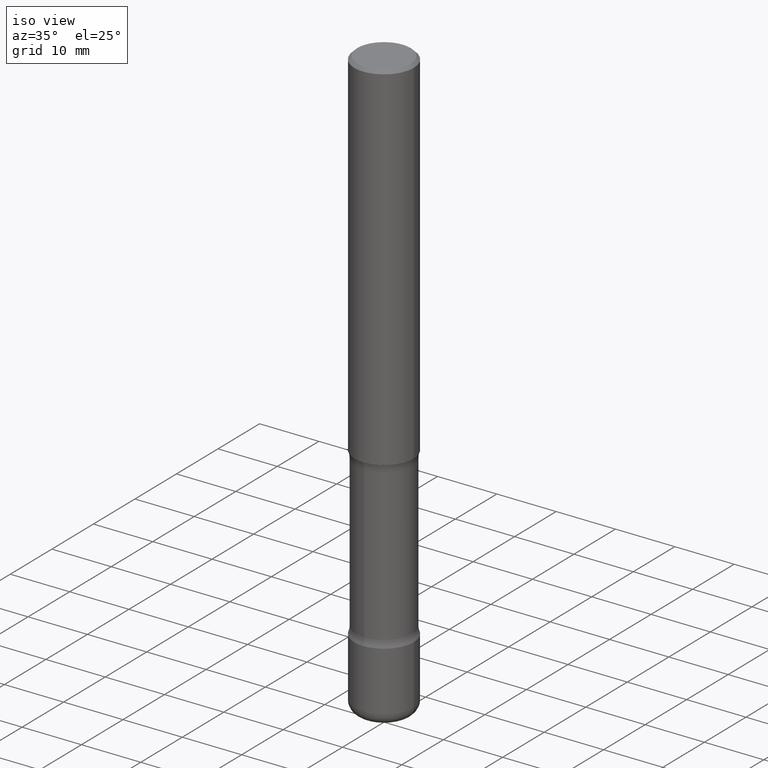
[diagram: clean part render]
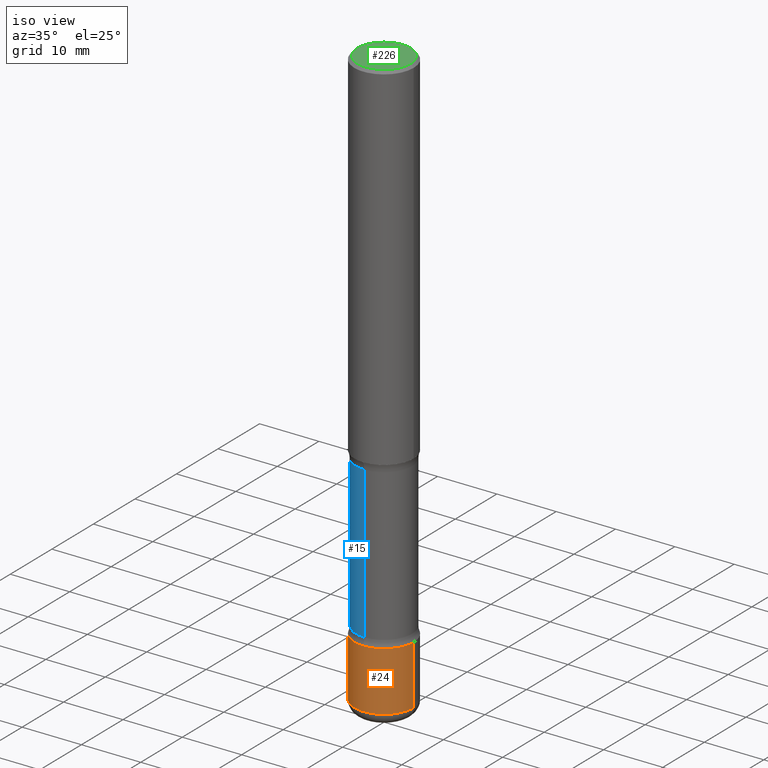
[diagram: same view with three faces highlighted in distinct colors, each labeled with its STEP entity id]
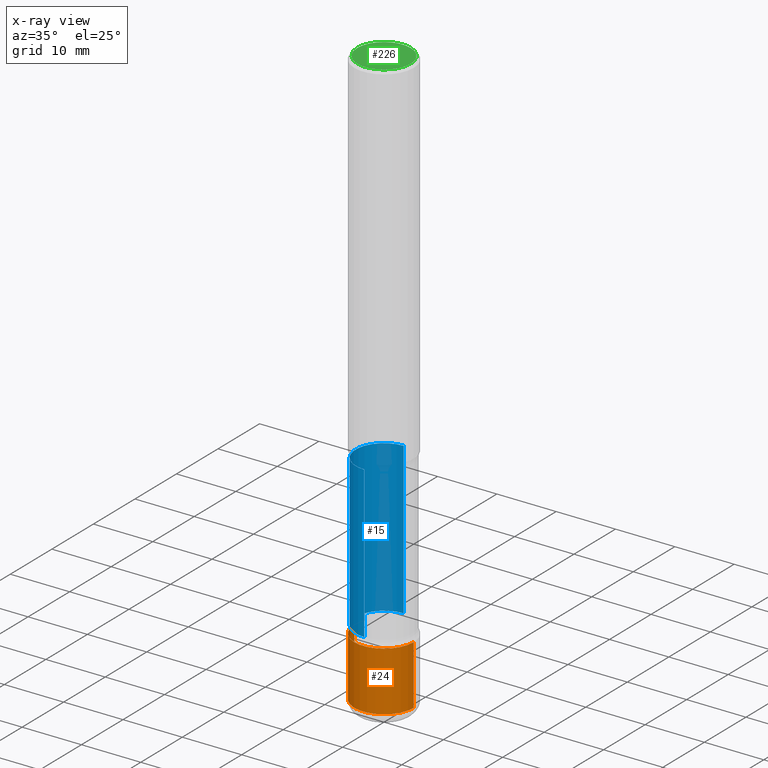
[diagram: x-ray of the same camera — body ghosted, the three highlighted faces saturated]
A machine part, iso view with three faces highlighted in distinct colors.
The next image is the same camera in x-ray (body ghosted, the three faces saturated) — at least one of them is partly hidden behind the body in this view.
Their STEP definitions:

[orange] entity #24 — the highlighted cylindrical surface (edge-blend (fillet) strip) has radius 5 mm, axis along (-0, 0, 1).
#24 = ADVANCED_FACE ( 'NONE', ( #110 ), #496, .T. ) ;
#64 = ORIENTED_EDGE ( 'NONE', *, *, #382, .F. ) ;
#75 = CARTESIAN_POINT ( 'NONE',  ( 0.1968500000000001082, -1.347118244965850692E-14, -3.464600000000000346 ) ) ;
#78 = DIRECTION ( 'NONE',  ( 1.000000000000000000, -6.982962677686269866E-15, 0.000000000000000000 ) ) ;
#85 = CARTESIAN_POINT ( 'NONE',  ( -0.1968500000000001082, -1.138518097276347833E-14, -3.464600000000000346 ) ) ;
#87 = EDGE_CURVE ( 'NONE', #488, #236, #176, .T. ) ;
#98 = VERTEX_POINT ( 'NONE', #505 ) ;
#110 = FACE_OUTER_BOUND ( 'NONE', #484, .T. ) ;
#111 = CARTESIAN_POINT ( 'NONE',  ( 8.472571225909025905E-29, -1.209658624655596531E-14, -3.464600000000000346 ) ) ;
#146 = CIRCLE ( 'NONE', #190, 0.1968500000000002470 ) ;
#149 = EDGE_CURVE ( 'NONE', #526, #98, #146, .T. ) ;
#176 = CIRCLE ( 'NONE', #528, 0.1968500000000001082 ) ;
#179 = ORIENTED_EDGE ( 'NONE', *, *, #485, .T. ) ;
#190 = AXIS2_PLACEMENT_3D ( 'NONE', #434, #212, #78 ) ;
#201 = DIRECTION ( 'NONE',  ( 1.000000000000000000, -6.982962677686266711E-15, 4.876176775795935793E-29 ) ) ;
#212 = DIRECTION ( 'NONE',  ( -2.445468806185136597E-29, 3.491481338843145583E-15, 1.000000000000000000 ) ) ;
#236 = VERTEX_POINT ( 'NONE', #75 ) ;
#262 = LINE ( 'NONE', #435, #418 ) ;
#282 = DIRECTION ( 'NONE',  ( -2.445468806185136597E-29, 3.491481338843145583E-15, 1.000000000000000000 ) ) ;
#292 = DIRECTION ( 'NONE',  ( 1.000000000000000000, -6.982962677686265133E-15, 0.000000000000000000 ) ) ;
#314 = ORIENTED_EDGE ( 'NONE', *, *, #87, .F. ) ;
#326 = CARTESIAN_POINT ( 'NONE',  ( 0.000000000000000000, 0.000000000000000000, 0.000000000000000000 ) ) ;
#349 = ORIENTED_EDGE ( 'NONE', *, *, #149, .T. ) ;
#382 = EDGE_CURVE ( 'NONE', #526, #488, #262, .T. ) ;
#386 = DIRECTION ( 'NONE',  ( -2.445468806185136877E-29, 3.491481338843145188E-15, 1.000000000000000000 ) ) ;
#418 = VECTOR ( 'NONE', #437, 39.37007874015748143 ) ;
#434 = CARTESIAN_POINT ( 'NONE',  ( 9.435352294904112142E-29, -1.347118244965850850E-14, -3.858300000000000285 ) ) ;
#435 = CARTESIAN_POINT ( 'NONE',  ( -0.1968500000000001915, 1.398703375343758577E-15, -9.682923725166790684E-30 ) ) ;
#437 = DIRECTION ( 'NONE',  ( -2.445468806185136877E-29, 3.491481338843145188E-15, 1.000000000000000000 ) ) ;
#443 = CARTESIAN_POINT ( 'NONE',  ( -0.1968500000000003580, -1.207247907431474834E-14, -3.858300000000000285 ) ) ;
#459 = DIRECTION ( 'NONE',  ( -2.445468806185136597E-29, 3.491481338843145583E-15, 1.000000000000000000 ) ) ;
#482 = CARTESIAN_POINT ( 'NONE',  ( 0.1968500000000001915, -1.374596203102542989E-15, 9.598753983154309266E-30 ) ) ;
#484 = EDGE_LOOP ( 'NONE', ( #64, #349, #179, #314 ) ) ;
#485 = EDGE_CURVE ( 'NONE', #98, #236, #524, .T. ) ;
#488 = VERTEX_POINT ( 'NONE', #85 ) ;
#494 = VECTOR ( 'NONE', #386, 39.37007874015748143 ) ;
#496 = CYLINDRICAL_SURFACE ( 'NONE', #520, 0.1968500000000001915 ) ;
#505 = CARTESIAN_POINT ( 'NONE',  ( 0.1968500000000003580, -1.484577865276105326E-14, -3.858300000000000285 ) ) ;
#520 = AXIS2_PLACEMENT_3D ( 'NONE', #326, #282, #201 ) ;
#524 = LINE ( 'NONE', #482, #494 ) ;
#526 = VERTEX_POINT ( 'NONE', #443 ) ;
#528 = AXIS2_PLACEMENT_3D ( 'NONE', #111, #459, #292 ) ;

[blue] entity #15 — the highlighted cylindrical surface (edge-blend (fillet) strip) has radius 4.7498 mm, axis along (0, -0, -1).
#9 = VERTEX_POINT ( 'NONE', #148 ) ;
#15 = ADVANCED_FACE ( 'NONE', ( #325 ), #116, .T. ) ;
#28 = CARTESIAN_POINT ( 'NONE',  ( -1.316701078222246415E-15, -0.1870000000000088536, -2.410836174808469679 ) ) ;
#39 = AXIS2_PLACEMENT_3D ( 'NONE', #377, #173, #547 ) ;
#55 = CARTESIAN_POINT ( 'NONE',  ( 1.305814020727390180E-15, 0.1869999999999915063, -2.410836174808470567 ) ) ;
#71 = EDGE_CURVE ( 'NONE', #9, #280, #447, .T. ) ;
#79 = CARTESIAN_POINT ( 'NONE',  ( 1.305814020727429623E-15, 0.1869999999999864826, -3.937000000000001165 ) ) ;
#91 = CIRCLE ( 'NONE', #39, 0.1870000000000001938 ) ;
#95 = EDGE_CURVE ( 'NONE', #446, #9, #207, .T. ) ;
#97 = ORIENTED_EDGE ( 'NONE', *, *, #71, .F. ) ;
#112 = EDGE_CURVE ( 'NONE', #536, #280, #560, .T. ) ;
#116 = CYLINDRICAL_SURFACE ( 'NONE', #140, 0.1870000000000001106 ) ;
#133 = EDGE_CURVE ( 'NONE', #446, #536, #91, .T. ) ;
#135 = ORIENTED_EDGE ( 'NONE', *, *, #95, .F. ) ;
#140 = AXIS2_PLACEMENT_3D ( 'NONE', #328, #539, #461 ) ;
#148 = CARTESIAN_POINT ( 'NONE',  ( -1.316701078222217030E-15, -0.1870000000000119622, -3.415963825191530745 ) ) ;
#153 = DIRECTION ( 'NONE',  ( 2.624067104346795258E-29, -3.235718410691801766E-15, -1.000000000000000000 ) ) ;
#173 = DIRECTION ( 'NONE',  ( 2.624067104346795258E-29, -3.235718410691801766E-15, -1.000000000000000000 ) ) ;
#207 = LINE ( 'NONE', #216, #286 ) ;
#216 = CARTESIAN_POINT ( 'NONE',  ( -1.282913125583180022E-15, -0.1870000000000137386, -3.937000000000000277 ) ) ;
#219 = DIRECTION ( 'NONE',  ( 2.624067104346795258E-29, -3.235718410691801766E-15, -1.000000000000000000 ) ) ;
#280 = VERTEX_POINT ( 'NONE', #310 ) ;
#286 = VECTOR ( 'NONE', #219, 39.37007874015748143 ) ;
#293 = AXIS2_PLACEMENT_3D ( 'NONE', #504, #153, #499 ) ;
#310 = CARTESIAN_POINT ( 'NONE',  ( 1.305814020727415423E-15, 0.1869999999999880647, -3.415963825191531633 ) ) ;
#321 = VECTOR ( 'NONE', #383, 39.37007874015748143 ) ;
#325 = FACE_OUTER_BOUND ( 'NONE', #538, .T. ) ;
#328 = CARTESIAN_POINT ( 'NONE',  ( 9.712180526002452972E-29, -1.362513962376677023E-14, -3.937000000000000721 ) ) ;
#377 = CARTESIAN_POINT ( 'NONE',  ( 5.707424236473284180E-29, -8.686903236862712228E-15, -2.410836174808470123 ) ) ;
#383 = DIRECTION ( 'NONE',  ( 2.624067104346795258E-29, -3.235718410691801766E-15, -1.000000000000000000 ) ) ;
#409 = ORIENTED_EDGE ( 'NONE', *, *, #112, .T. ) ;
#446 = VERTEX_POINT ( 'NONE', #28 ) ;
#447 = CIRCLE ( 'NONE', #293, 0.1869999999999999996 ) ;
#461 = DIRECTION ( 'NONE',  ( 6.982962677686266711E-15, 1.000000000000000000, -2.921762560068729017E-15 ) ) ;
#489 = ORIENTED_EDGE ( 'NONE', *, *, #133, .T. ) ;
#499 = DIRECTION ( 'NONE',  ( 6.982962677686266711E-15, 1.000000000000000000, -2.921762560068730595E-15 ) ) ;
#504 = CARTESIAN_POINT ( 'NONE',  ( 8.344946639512860157E-29, -1.193921328030257430E-14, -3.415963825191531189 ) ) ;
#536 = VERTEX_POINT ( 'NONE', #55 ) ;
#538 = EDGE_LOOP ( 'NONE', ( #135, #489, #409, #97 ) ) ;
#539 = DIRECTION ( 'NONE',  ( 2.624067104346795258E-29, -3.235718410691801766E-15, -1.000000000000000000 ) ) ;
#547 = DIRECTION ( 'NONE',  ( 6.982962677686265133E-15, 1.000000000000000000, -2.921762560068727834E-15 ) ) ;
#560 = LINE ( 'NONE', #79, #321 ) ;

[green] entity #226 — the highlighted planar face has unit normal (0, -0, -1).
#1 = DIRECTION ( 'NONE',  ( 1.000000000000000000, -6.982962677686266711E-15, 4.875932113059882493E-29 ) ) ;
#31 = DIRECTION ( 'NONE',  ( 2.438088387897960049E-29, -3.491481338843145188E-15, -1.000000000000000000 ) ) ;
#53 = EDGE_LOOP ( 'NONE', ( #451, #273 ) ) ;
#56 = VERTEX_POINT ( 'NONE', #196 ) ;
#67 = CIRCLE ( 'NONE', #337, 0.1768499999999998407 ) ;
#114 = DIRECTION ( 'NONE',  ( -2.445468806185136597E-29, 3.491481338843145583E-15, 1.000000000000000000 ) ) ;
#170 = CARTESIAN_POINT ( 'NONE',  ( 1.234936949548815012E-15, 0.1768499999999998407, -6.153342185293596592E-16 ) ) ;
#196 = CARTESIAN_POINT ( 'NONE',  ( -0.1768499999999998407, 1.269851762937246464E-15, 4.268512490091652920E-18 ) ) ;
#209 = CARTESIAN_POINT ( 'NONE',  ( -1.043851414335219820E-46, 1.490343170380447200E-32, 4.268512490100411279E-18 ) ) ;
#226 = ADVANCED_FACE ( 'NONE', ( #419 ), #430, .F. ) ;
#230 = AXIS2_PLACEMENT_3D ( 'NONE', #170, #31, #342 ) ;
#255 = CARTESIAN_POINT ( 'NONE',  ( -1.043851414335219820E-46, 1.490343170380447200E-32, 4.268512490100411279E-18 ) ) ;
#257 = DIRECTION ( 'NONE',  ( -2.445468806185136597E-29, 3.491481338843145583E-15, 1.000000000000000000 ) ) ;
#272 = VERTEX_POINT ( 'NONE', #370 ) ;
#273 = ORIENTED_EDGE ( 'NONE', *, *, #340, .T. ) ;
#278 = AXIS2_PLACEMENT_3D ( 'NONE', #209, #257, #1 ) ;
#337 = AXIS2_PLACEMENT_3D ( 'NONE', #255, #114, #417 ) ;
#340 = EDGE_CURVE ( 'NONE', #272, #56, #553, .T. ) ;
#342 = DIRECTION ( 'NONE',  ( -1.000000000000000000, 6.982962677686265922E-15, -4.876176775795935793E-29 ) ) ;
#370 = CARTESIAN_POINT ( 'NONE',  ( 0.1768499999999998407, -1.316798864272041352E-15, 4.268512490109333727E-18 ) ) ;
#417 = DIRECTION ( 'NONE',  ( 1.000000000000000000, -6.982962677686266711E-15, 4.875932113059882493E-29 ) ) ;
#419 = FACE_OUTER_BOUND ( 'NONE', #53, .T. ) ;
#430 = PLANE ( 'NONE',  #230 ) ;
#432 = EDGE_CURVE ( 'NONE', #56, #272, #67, .T. ) ;
#451 = ORIENTED_EDGE ( 'NONE', *, *, #432, .T. ) ;
#553 = CIRCLE ( 'NONE', #278, 0.1768499999999998407 ) ;